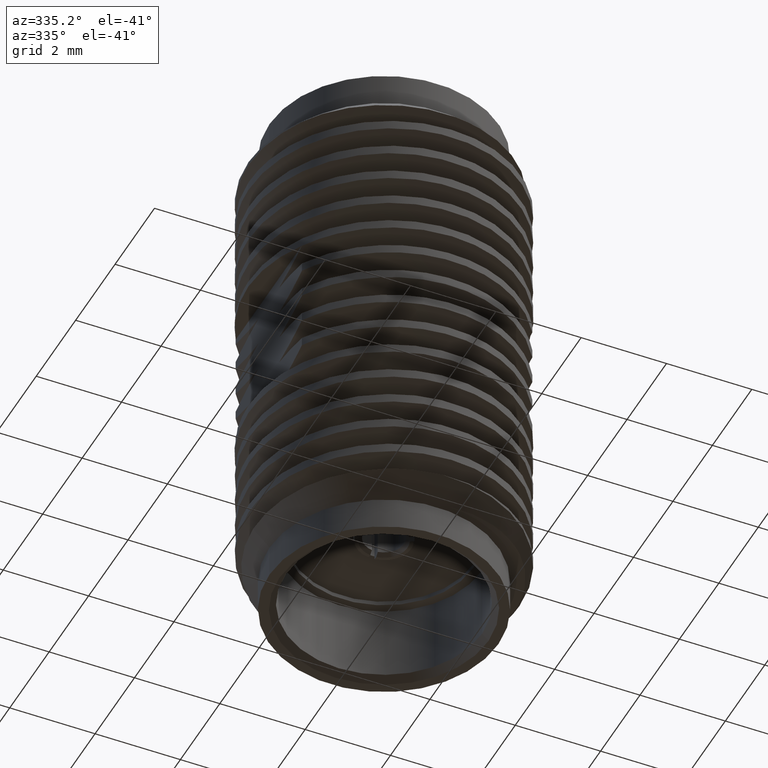
[diagram: clean part render]
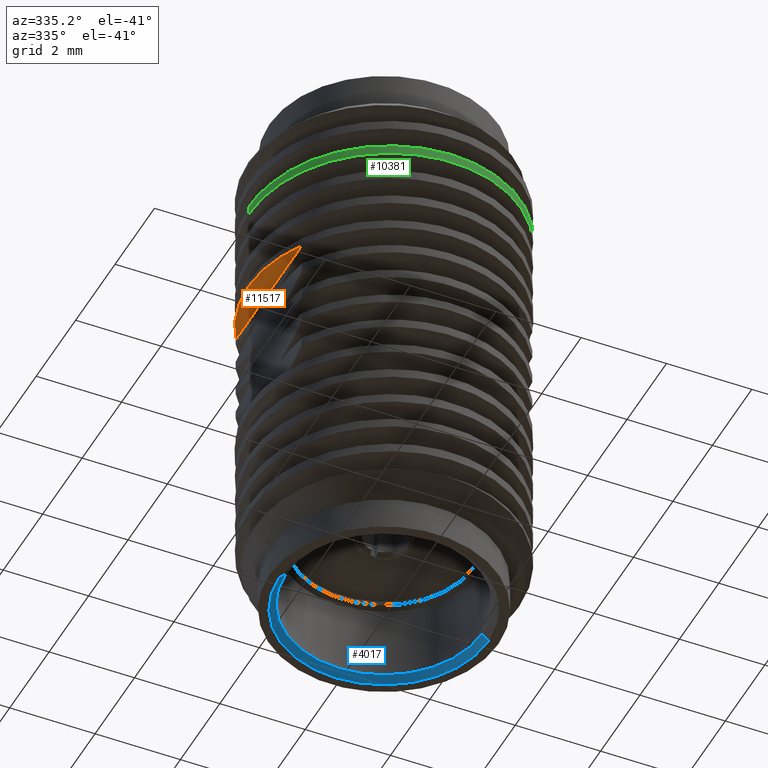
[diagram: same view with three faces highlighted in distinct colors, each labeled with its STEP entity id]
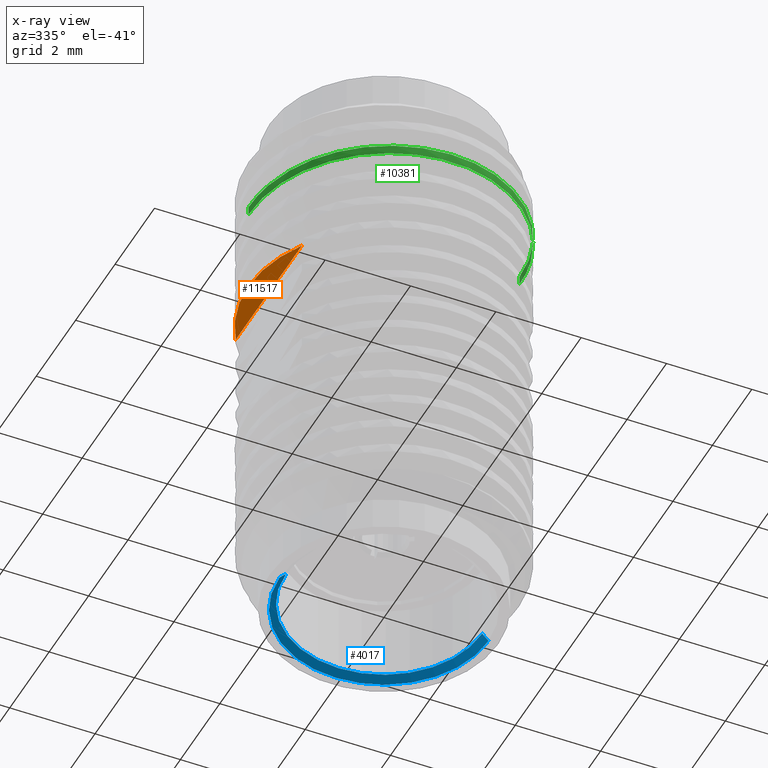
[diagram: x-ray of the same camera — body ghosted, the three highlighted faces saturated]
A machine part, auxiliary view with three faces highlighted in distinct colors.
The next image is the same camera in x-ray (body ghosted, the three faces saturated) — at least one of them is partly hidden behind the body in this view.
Their STEP definitions:

[orange] entity #11517 — the highlighted planar face has unit normal (0, 0, 1).
#469 = DIRECTION ( 'NONE',  ( 0.0000000000000000000, 0.0000000000000000000, 1.000000000000000000 ) ) ;
#561 = PLANE ( 'NONE',  #7478 ) ;
#566 = FACE_OUTER_BOUND ( 'NONE', #2087, .T. ) ;
#663 = CARTESIAN_POINT ( 'NONE',  ( -2.699999999999999700, -4.903225953249545900, 1.590000000000000100 ) ) ;
#858 = LINE ( 'NONE', #663, #6484 ) ;
#1602 = CARTESIAN_POINT ( 'NONE',  ( 0.0000000000000000000, 0.0000000000000000000, 1.590000000000000300 ) ) ;
#2087 = EDGE_LOOP ( 'NONE', ( #7664, #6874, #5503 ) ) ;
#2596 = DIRECTION ( 'NONE',  ( 1.000000000000000000, 0.0000000000000000000, 0.0000000000000000000 ) ) ;
#2746 = DIRECTION ( 'NONE',  ( -0.0000000000000000000, -1.000000000000000000, -0.0000000000000000000 ) ) ;
#3459 = VERTEX_POINT ( 'NONE', #6847 ) ;
#3738 = DIRECTION ( 'NONE',  ( 0.0000000000000000000, 0.0000000000000000000, 1.000000000000000000 ) ) ;
#4271 = CIRCLE ( 'NONE', #8648, 3.180000000000000200 ) ;
#4943 = EDGE_CURVE ( 'NONE', #10802, #3459, #858, .T. ) ;
#4980 = CIRCLE ( 'NONE', #7931, 3.180000000000000200 ) ;
#5503 = ORIENTED_EDGE ( 'NONE', *, *, #5523, .F. ) ;
#5523 = EDGE_CURVE ( 'NONE', #10802, #12721, #4271, .T. ) ;
#6484 = VECTOR ( 'NONE', #2746, 1000.000000000000000 ) ;
#6847 = CARTESIAN_POINT ( 'NONE',  ( -2.699999999999999700, -1.680000000000001700, 1.590000000000000100 ) ) ;
#6874 = ORIENTED_EDGE ( 'NONE', *, *, #11706, .F. ) ;
#6966 = CARTESIAN_POINT ( 'NONE',  ( -4.336808689942017700E-016, 0.0000000000000000000, 1.590000000000000100 ) ) ;
#7173 = DIRECTION ( 'NONE',  ( 1.000000000000000000, 0.0000000000000000000, 0.0000000000000000000 ) ) ;
#7478 = AXIS2_PLACEMENT_3D ( 'NONE', #6966, #469, #9104 ) ;
#7664 = ORIENTED_EDGE ( 'NONE', *, *, #4943, .T. ) ;
#7931 = AXIS2_PLACEMENT_3D ( 'NONE', #11259, #10351, #7173 ) ;
#8648 = AXIS2_PLACEMENT_3D ( 'NONE', #1602, #3738, #2596 ) ;
#9104 = DIRECTION ( 'NONE',  ( 1.000000000000000000, 0.0000000000000000000, -0.0000000000000000000 ) ) ;
#10351 = DIRECTION ( 'NONE',  ( 0.0000000000000000000, 0.0000000000000000000, 1.000000000000000000 ) ) ;
#10802 = VERTEX_POINT ( 'NONE', #11459 ) ;
#11259 = CARTESIAN_POINT ( 'NONE',  ( 0.0000000000000000000, 0.0000000000000000000, 1.590000000000000300 ) ) ;
#11459 = CARTESIAN_POINT ( 'NONE',  ( -2.699999999999999700, 1.680000000000001700, 1.590000000000000100 ) ) ;
#11517 = ADVANCED_FACE ( 'NONE', ( #566 ), #561, .F. ) ;
#11706 = EDGE_CURVE ( 'NONE', #12721, #3459, #4980, .T. ) ;
#12721 = VERTEX_POINT ( 'NONE', #13765 ) ;
#13765 = CARTESIAN_POINT ( 'NONE',  ( -3.180000000000000200, 0.0000000000000000000, 1.590000000000000300 ) ) ;

[blue] entity #4017 — the highlighted conical surface has half-angle 45 deg.
#136 = EDGE_CURVE ( 'NONE', #7537, #10376, #8155, .T. ) ;
#568 = CARTESIAN_POINT ( 'NONE',  ( 2.299999999999999800, 2.816687638038912100E-016, -6.200000000000000200 ) ) ;
#1562 = ORIENTED_EDGE ( 'NONE', *, *, #5617, .F. ) ;
#1593 = DIRECTION ( 'NONE',  ( 1.000000000000000000, 0.0000000000000000000, 0.0000000000000000000 ) ) ;
#2120 = ORIENTED_EDGE ( 'NONE', *, *, #10151, .T. ) ;
#2276 = CARTESIAN_POINT ( 'NONE',  ( -2.449999999999998800, 0.0000000000000000000, -6.349999999999999600 ) ) ;
#2368 = FACE_OUTER_BOUND ( 'NONE', #6691, .T. ) ;
#2927 = VECTOR ( 'NONE', #6277, 1000.000000000000000 ) ;
#3145 = ORIENTED_EDGE ( 'NONE', *, *, #136, .F. ) ;
#3513 = DIRECTION ( 'NONE',  ( -0.7071067811865454600, 0.0000000000000000000, -0.7071067811865495700 ) ) ;
#3693 = CARTESIAN_POINT ( 'NONE',  ( 0.0000000000000000000, 0.0000000000000000000, -6.349999999999999600 ) ) ;
#3838 = DIRECTION ( 'NONE',  ( 0.0000000000000000000, 0.0000000000000000000, 1.000000000000000000 ) ) ;
#4017 = ADVANCED_FACE ( 'NONE', ( #2368 ), #7298, .F. ) ;
#4080 = AXIS2_PLACEMENT_3D ( 'NONE', #3693, #3838, #8010 ) ;
#4511 = CARTESIAN_POINT ( 'NONE',  ( -2.449999999999998800, 0.0000000000000000000, -6.349999999999999600 ) ) ;
#4609 = CIRCLE ( 'NONE', #4080, 2.449999999999998800 ) ;
#5393 = CARTESIAN_POINT ( 'NONE',  ( 2.449999999999998800, 3.000384657911014400E-016, -6.349999999999999600 ) ) ;
#5617 = EDGE_CURVE ( 'NONE', #13489, #9631, #4609, .T. ) ;
#5824 = LINE ( 'NONE', #5393, #2927 ) ;
#6277 = DIRECTION ( 'NONE',  ( 0.7071067811865454600, 8.659560562354908200E-017, -0.7071067811865495700 ) ) ;
#6344 = EDGE_CURVE ( 'NONE', #10376, #13489, #5824, .T. ) ;
#6691 = EDGE_LOOP ( 'NONE', ( #11724, #3145, #2120, #1562 ) ) ;
#6962 = CARTESIAN_POINT ( 'NONE',  ( 0.0000000000000000000, 0.0000000000000000000, -6.200000000000000200 ) ) ;
#7298 = CONICAL_SURFACE ( 'NONE', #10275, 2.449999999999998800, 0.7853981633974453900 ) ;
#7537 = VERTEX_POINT ( 'NONE', #11498 ) ;
#7655 = LINE ( 'NONE', #4511, #9520 ) ;
#8010 = DIRECTION ( 'NONE',  ( 1.000000000000000000, 0.0000000000000000000, 0.0000000000000000000 ) ) ;
#8155 = CIRCLE ( 'NONE', #11901, 2.299999999999999800 ) ;
#9520 = VECTOR ( 'NONE', #3513, 1000.000000000000000 ) ;
#9631 = VERTEX_POINT ( 'NONE', #2276 ) ;
#9636 = CARTESIAN_POINT ( 'NONE',  ( 0.0000000000000000000, 0.0000000000000000000, -6.349999999999999600 ) ) ;
#9732 = DIRECTION ( 'NONE',  ( -0.0000000000000000000, -0.0000000000000000000, -1.000000000000000000 ) ) ;
#10151 = EDGE_CURVE ( 'NONE', #7537, #9631, #7655, .T. ) ;
#10275 = AXIS2_PLACEMENT_3D ( 'NONE', #9636, #9732, #12907 ) ;
#10376 = VERTEX_POINT ( 'NONE', #568 ) ;
#11498 = CARTESIAN_POINT ( 'NONE',  ( -2.299999999999999800, 0.0000000000000000000, -6.200000000000000200 ) ) ;
#11724 = ORIENTED_EDGE ( 'NONE', *, *, #6344, .F. ) ;
#11901 = AXIS2_PLACEMENT_3D ( 'NONE', #6962, #12379, #1593 ) ;
#12379 = DIRECTION ( 'NONE',  ( -0.0000000000000000000, -0.0000000000000000000, -1.000000000000000000 ) ) ;
#12907 = DIRECTION ( 'NONE',  ( -1.000000000000000000, 0.0000000000000000000, 0.0000000000000000000 ) ) ;
#13110 = CARTESIAN_POINT ( 'NONE',  ( 2.449999999999998800, 3.000384657911014400E-016, -6.349999999999999600 ) ) ;
#13489 = VERTEX_POINT ( 'NONE', #13110 ) ;

[green] entity #10381 — the highlighted cylindrical surface (partial cylindrical patch) has radius 3.175 mm, axis along (-0, -0, 1).
#291 =( BOUNDED_CURVE ( )  B_SPLINE_CURVE ( 2, ( #3006, #8506, #12880, #6275, #11744, #7322, #7464 ),
 .UNSPECIFIED., .F., .F. ) 
 B_SPLINE_CURVE_WITH_KNOTS ( ( 3, 2, 2, 3 ),
 ( 0.7750000008324852100, 0.7833333333333333300, 0.7916666666666666300, 0.8000000008324852400 ),
 .UNSPECIFIED. ) 
 CURVE ( )  GEOMETRIC_REPRESENTATION_ITEM ( )  RATIONAL_B_SPLINE_CURVE ( ( 1.000000000000000000, 0.8660254037844388200, 1.000000000000000000, 0.8660254037844388200, 1.000000000000000000, 0.8660254037844388200, 1.000000000000000000 ) ) 
 REPRESENTATION_ITEM ( '' )  );
#899 = VECTOR ( 'NONE', #12594, 1000.000000000000000 ) ;
#1560 = VERTEX_POINT ( 'NONE', #9788 ) ;
#1794 = CARTESIAN_POINT ( 'NONE',  ( 3.174999999999999400, 3.029469691077823400E-015, 4.178481666185253300 ) ) ;
#2842 = CARTESIAN_POINT ( 'NONE',  ( -3.175000183122130200, -1.833086787500192200, 3.886814989425240600 ) ) ;
#3006 = CARTESIAN_POINT ( 'NONE',  ( -3.174999999999999800, -2.640644179656226500E-015, 3.619723498529087800 ) ) ;
#3161 = ORIENTED_EDGE ( 'NONE', *, *, #10780, .T. ) ;
#3869 = EDGE_CURVE ( 'NONE', #10798, #4987, #11955, .T. ) ;
#3988 = CARTESIAN_POINT ( 'NONE',  ( -3.662442908994895100E-007, -3.666174209354104500, 4.003481656091906900 ) ) ;
#4070 = CARTESIAN_POINT ( 'NONE',  ( 3.174999816877837900, -1.833087421853913300, 4.120148322758573100 ) ) ;
#4254 = ORIENTED_EDGE ( 'NONE', *, *, #8233, .T. ) ;
#4464 = EDGE_LOOP ( 'NONE', ( #12126, #4254, #3161, #7554 ) ) ;
#4558 = DIRECTION ( 'NONE',  ( -0.0000000000000000000, -0.0000000000000000000, 1.000000000000000000 ) ) ;
#4566 = AXIS2_PLACEMENT_3D ( 'NONE', #11301, #9063, #9154 ) ;
#4987 = VERTEX_POINT ( 'NONE', #13016 ) ;
#5112 = VECTOR ( 'NONE', #4558, 1000.000000000000000 ) ;
#6181 = CARTESIAN_POINT ( 'NONE',  ( 3.174999999999999800, 0.0000000000000000000, 1.550000000000000300 ) ) ;
#6275 = CARTESIAN_POINT ( 'NONE',  ( -3.662442908994895100E-007, -3.666174209354104500, 3.794723488435738800 ) ) ;
#7322 = CARTESIAN_POINT ( 'NONE',  ( 3.174999816877837500, -1.833087421853913300, 3.911390155102405500 ) ) ;
#7464 = CARTESIAN_POINT ( 'NONE',  ( 3.174999999999999800, 3.029469639379033900E-015, 3.969723498529084800 ) ) ;
#7554 = ORIENTED_EDGE ( 'NONE', *, *, #3869, .T. ) ;
#7994 = LINE ( 'NONE', #9921, #5112 ) ;
#8233 = EDGE_CURVE ( 'NONE', #9895, #1560, #291, .T. ) ;
#8506 = CARTESIAN_POINT ( 'NONE',  ( -3.175000183122129300, -1.833086787500191900, 3.678056821769072600 ) ) ;
#8539 = CYLINDRICAL_SURFACE ( 'NONE', #4566, 3.174999999999999800 ) ;
#9063 = DIRECTION ( 'NONE',  ( -0.0000000000000000000, -0.0000000000000000000, 1.000000000000000000 ) ) ;
#9154 = DIRECTION ( 'NONE',  ( 1.000000000000000000, 0.0000000000000000000, 0.0000000000000000000 ) ) ;
#9785 = CARTESIAN_POINT ( 'NONE',  ( -3.174999999999999800, -2.640644179656226500E-015, 3.619723498529087800 ) ) ;
#9788 = CARTESIAN_POINT ( 'NONE',  ( 3.174999999999999800, 3.029469639379033900E-015, 3.969723498529084800 ) ) ;
#9895 = VERTEX_POINT ( 'NONE', #9785 ) ;
#9921 = CARTESIAN_POINT ( 'NONE',  ( -3.174999999999999800, 3.888253587292846100E-016, 1.550000000000000300 ) ) ;
#10256 = EDGE_CURVE ( 'NONE', #9895, #4987, #7994, .T. ) ;
#10381 = ADVANCED_FACE ( 'NONE', ( #13427 ), #8539, .T. ) ;
#10780 = EDGE_CURVE ( 'NONE', #1560, #10798, #13632, .T. ) ;
#10798 = VERTEX_POINT ( 'NONE', #13631 ) ;
#11301 = CARTESIAN_POINT ( 'NONE',  ( 0.0000000000000000000, 0.0000000000000000000, 1.550000000000000300 ) ) ;
#11488 = CARTESIAN_POINT ( 'NONE',  ( 1.587499725316772200, -2.749630815604009500, 4.061814989425238700 ) ) ;
#11533 = CARTESIAN_POINT ( 'NONE',  ( -1.587500274683211000, -2.749630498427148200, 3.945148322758572400 ) ) ;
#11744 = CARTESIAN_POINT ( 'NONE',  ( 1.587499725316772200, -2.749630815604009900, 3.853056821769072400 ) ) ;
#11955 =( BOUNDED_CURVE ( )  B_SPLINE_CURVE ( 2, ( #1794, #4070, #11488, #3988, #11533, #2842, #12582 ),
 .UNSPECIFIED., .F., .F. ) 
 B_SPLINE_CURVE_WITH_KNOTS ( ( 3, 2, 2, 3 ),
 ( 0.1499999991675148300, 0.1583333333333333300, 0.1666666666666666300, 0.1749999991675148500 ),
 .UNSPECIFIED. ) 
 CURVE ( )  GEOMETRIC_REPRESENTATION_ITEM ( )  RATIONAL_B_SPLINE_CURVE ( ( 1.000000000000000000, 0.8660254037844387100, 1.000000000000000000, 0.8660254037844387100, 1.000000000000000000, 0.8660254037844387100, 1.000000000000000000 ) ) 
 REPRESENTATION_ITEM ( '' )  );
#12126 = ORIENTED_EDGE ( 'NONE', *, *, #10256, .F. ) ;
#12582 = CARTESIAN_POINT ( 'NONE',  ( -3.174999999999999400, -2.640639992054263500E-015, 3.828481666185253200 ) ) ;
#12594 = DIRECTION ( 'NONE',  ( -0.0000000000000000000, -0.0000000000000000000, 1.000000000000000000 ) ) ;
#12880 = CARTESIAN_POINT ( 'NONE',  ( -1.587500274683211200, -2.749630498427148700, 3.736390155102406600 ) ) ;
#13016 = CARTESIAN_POINT ( 'NONE',  ( -3.174999999999999400, -2.640639992054263500E-015, 3.828481666185253200 ) ) ;
#13427 = FACE_OUTER_BOUND ( 'NONE', #4464, .T. ) ;
#13631 = CARTESIAN_POINT ( 'NONE',  ( 3.174999999999999400, 3.029469691077823400E-015, 4.178481666185253300 ) ) ;
#13632 = LINE ( 'NONE', #6181, #899 ) ;